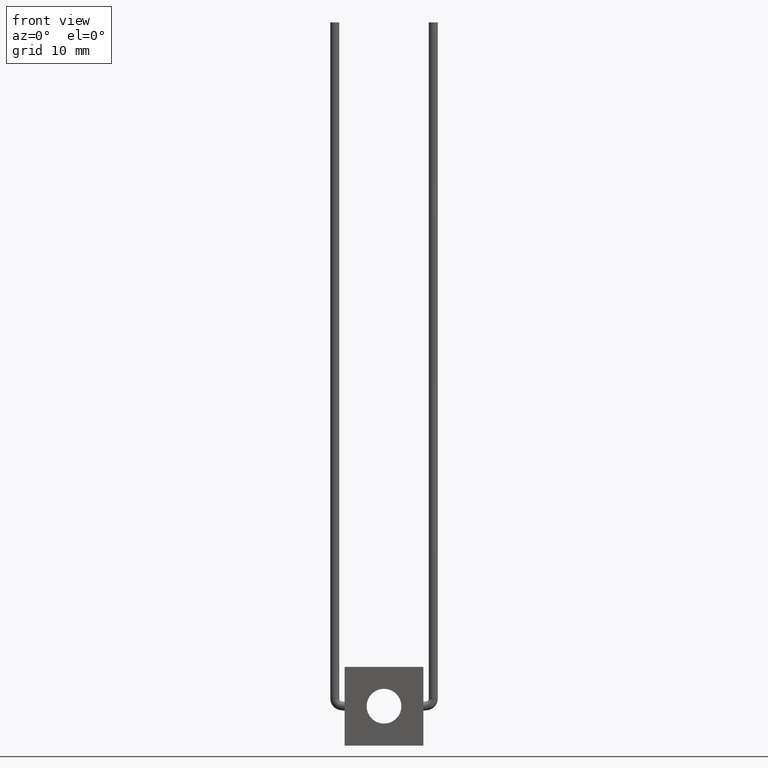
[diagram: clean part render]
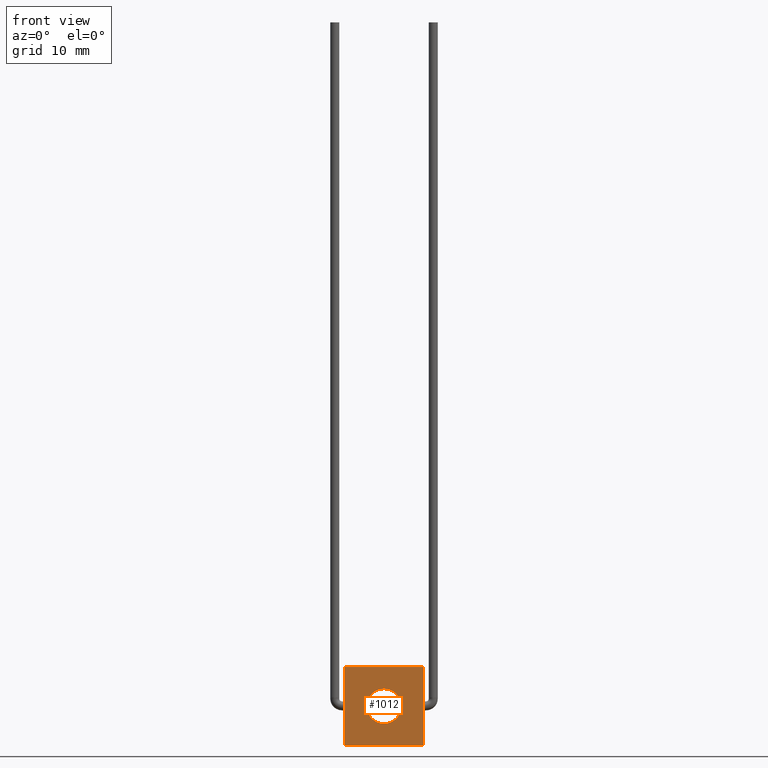
[diagram: same view with one face highlighted and labeled with its STEP entity id]
A machine part, front view. The second image highlights one B-rep face of the part: STEP entity #1012.
In plain terms, the highlighted planar face has unit normal (-0, 1, 0).
Its self-contained STEP definition (entity closure, byte-faithful):
#50 = AXIS2_PLACEMENT_3D ( 'NONE', #620, #826, #1064 ) ;
#109 = VERTEX_POINT ( 'NONE', #1162 ) ;
#131 = FACE_BOUND ( 'NONE', #1220, .T. ) ;
#137 = EDGE_CURVE ( 'NONE', #578, #1071, #354, .T. ) ;
#229 = ORIENTED_EDGE ( 'NONE', *, *, #137, .F. ) ;
#238 = CARTESIAN_POINT ( 'NONE',  ( 0.0000000000000000000, 0.0000000000000000000, 0.0000000000000000000 ) ) ;
#246 = DIRECTION ( 'NONE',  ( -0.0000000000000000000, 1.000000000000000000, 0.0000000000000000000 ) ) ;
#261 = VECTOR ( 'NONE', #503, 1000.000000000000000 ) ;
#328 = EDGE_CURVE ( 'NONE', #450, #1013, #366, .T. ) ;
#354 = LINE ( 'NONE', #1179, #901 ) ;
#366 = CIRCLE ( 'NONE', #630, 1.550000000000000000 ) ;
#396 = EDGE_CURVE ( 'NONE', #1055, #578, #636, .T. ) ;
#404 = FACE_OUTER_BOUND ( 'NONE', #742, .T. ) ;
#405 = CARTESIAN_POINT ( 'NONE',  ( -3.499999999999999600, 0.0000000000000000000, -3.500000000000000000 ) ) ;
#408 = DIRECTION ( 'NONE',  ( -1.000000000000000000, -0.0000000000000000000, -0.0000000000000000000 ) ) ;
#423 = DIRECTION ( 'NONE',  ( 0.0000000000000000000, 0.0000000000000000000, 1.000000000000000000 ) ) ;
#450 = VERTEX_POINT ( 'NONE', #480 ) ;
#469 = ORIENTED_EDGE ( 'NONE', *, *, #396, .F. ) ;
#471 = EDGE_CURVE ( 'NONE', #1071, #109, #559, .T. ) ;
#480 = CARTESIAN_POINT ( 'NONE',  ( 0.0000000000000000000, 0.0000000000000000000, 1.550000000000000000 ) ) ;
#486 = CARTESIAN_POINT ( 'NONE',  ( -3.499999999999999100, 0.0000000000000000000, 3.500000000000000900 ) ) ;
#503 = DIRECTION ( 'NONE',  ( 1.000000000000000000, 0.0000000000000000000, -1.239088197126291100E-016 ) ) ;
#559 = LINE ( 'NONE', #486, #261 ) ;
#563 = AXIS2_PLACEMENT_3D ( 'NONE', #798, #796, #792 ) ;
#578 = VERTEX_POINT ( 'NONE', #674 ) ;
#615 = LINE ( 'NONE', #688, #922 ) ;
#620 = CARTESIAN_POINT ( 'NONE',  ( 0.0000000000000000000, 0.0000000000000000000, 0.0000000000000000000 ) ) ;
#630 = AXIS2_PLACEMENT_3D ( 'NONE', #238, #246, #423 ) ;
#636 = LINE ( 'NONE', #405, #1126 ) ;
#674 = CARTESIAN_POINT ( 'NONE',  ( -3.499999999999999600, 0.0000000000000000000, -3.500000000000000000 ) ) ;
#681 = DIRECTION ( 'NONE',  ( -6.195440985631454100E-017, -0.0000000000000000000, -1.000000000000000000 ) ) ;
#688 = CARTESIAN_POINT ( 'NONE',  ( 3.499999999999999600, 0.0000000000000000000, -3.500000000000000000 ) ) ;
#725 = CARTESIAN_POINT ( 'NONE',  ( -3.499999999999999100, 0.0000000000000000000, 3.500000000000000900 ) ) ;
#742 = EDGE_LOOP ( 'NONE', ( #229, #469, #999, #1073 ) ) ;
#750 = ORIENTED_EDGE ( 'NONE', *, *, #328, .T. ) ;
#754 = EDGE_CURVE ( 'NONE', #1013, #450, #1143, .T. ) ;
#787 = CARTESIAN_POINT ( 'NONE',  ( 3.499999999999999600, 0.0000000000000000000, -3.500000000000000000 ) ) ;
#792 = DIRECTION ( 'NONE',  ( 0.0000000000000000000, -0.0000000000000000000, 1.000000000000000000 ) ) ;
#796 = DIRECTION ( 'NONE',  ( -0.0000000000000000000, 1.000000000000000000, 0.0000000000000000000 ) ) ;
#798 = CARTESIAN_POINT ( 'NONE',  ( 0.0000000000000000000, 0.0000000000000000000, 0.0000000000000000000 ) ) ;
#826 = DIRECTION ( 'NONE',  ( -0.0000000000000000000, 1.000000000000000000, 0.0000000000000000000 ) ) ;
#862 = PLANE ( 'NONE',  #563 ) ;
#869 = CARTESIAN_POINT ( 'NONE',  ( 1.898202538678397500E-016, 0.0000000000000000000, -1.550000000000000000 ) ) ;
#901 = VECTOR ( 'NONE', #992, 1000.000000000000000 ) ;
#922 = VECTOR ( 'NONE', #681, 1000.000000000000000 ) ;
#936 = ORIENTED_EDGE ( 'NONE', *, *, #754, .T. ) ;
#992 = DIRECTION ( 'NONE',  ( 6.195440985631452900E-017, 0.0000000000000000000, 1.000000000000000000 ) ) ;
#999 = ORIENTED_EDGE ( 'NONE', *, *, #1178, .F. ) ;
#1012 = ADVANCED_FACE ( 'NONE', ( #131, #404 ), #862, .F. ) ;
#1013 = VERTEX_POINT ( 'NONE', #869 ) ;
#1055 = VERTEX_POINT ( 'NONE', #787 ) ;
#1064 = DIRECTION ( 'NONE',  ( 0.0000000000000000000, 0.0000000000000000000, 1.000000000000000000 ) ) ;
#1071 = VERTEX_POINT ( 'NONE', #725 ) ;
#1073 = ORIENTED_EDGE ( 'NONE', *, *, #471, .F. ) ;
#1126 = VECTOR ( 'NONE', #408, 1000.000000000000000 ) ;
#1143 = CIRCLE ( 'NONE', #50, 1.550000000000000000 ) ;
#1162 = CARTESIAN_POINT ( 'NONE',  ( 3.500000000000000000, 0.0000000000000000000, 3.500000000000000000 ) ) ;
#1178 = EDGE_CURVE ( 'NONE', #109, #1055, #615, .T. ) ;
#1179 = CARTESIAN_POINT ( 'NONE',  ( -3.499999999999999600, 0.0000000000000000000, -3.500000000000000000 ) ) ;
#1220 = EDGE_LOOP ( 'NONE', ( #750, #936 ) ) ;